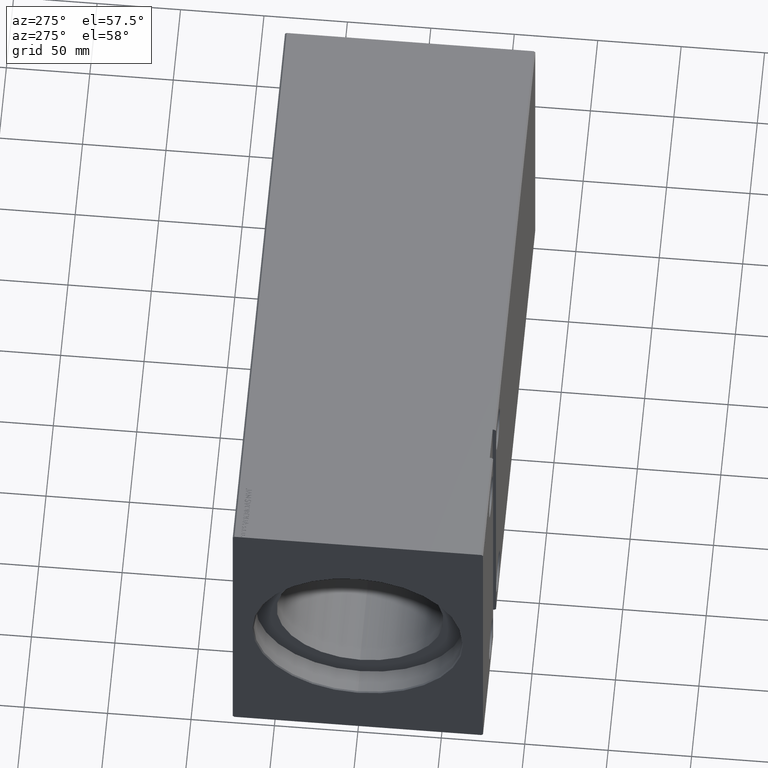
[diagram: clean part render]
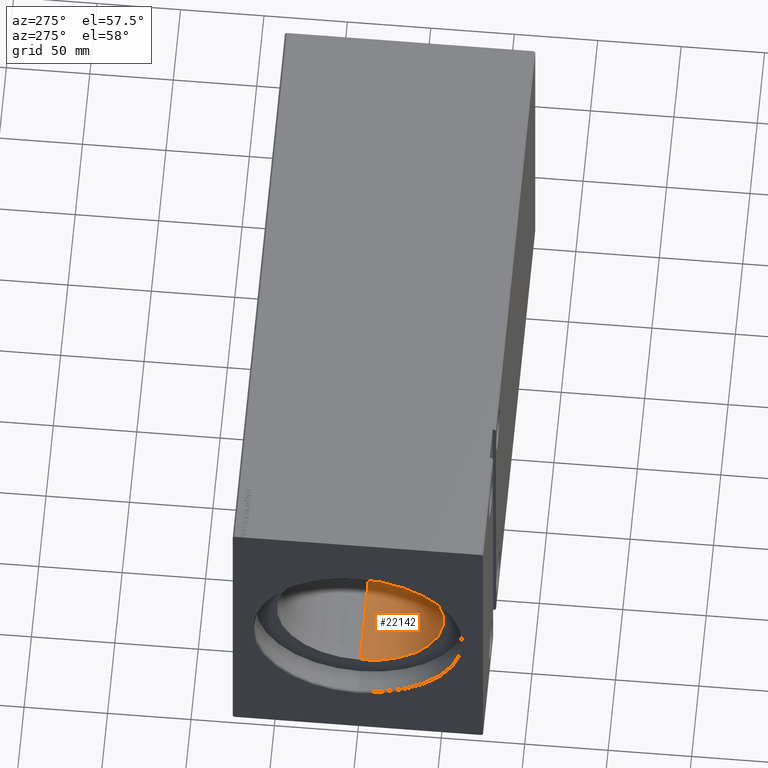
[diagram: same view with one face highlighted and labeled with its STEP entity id]
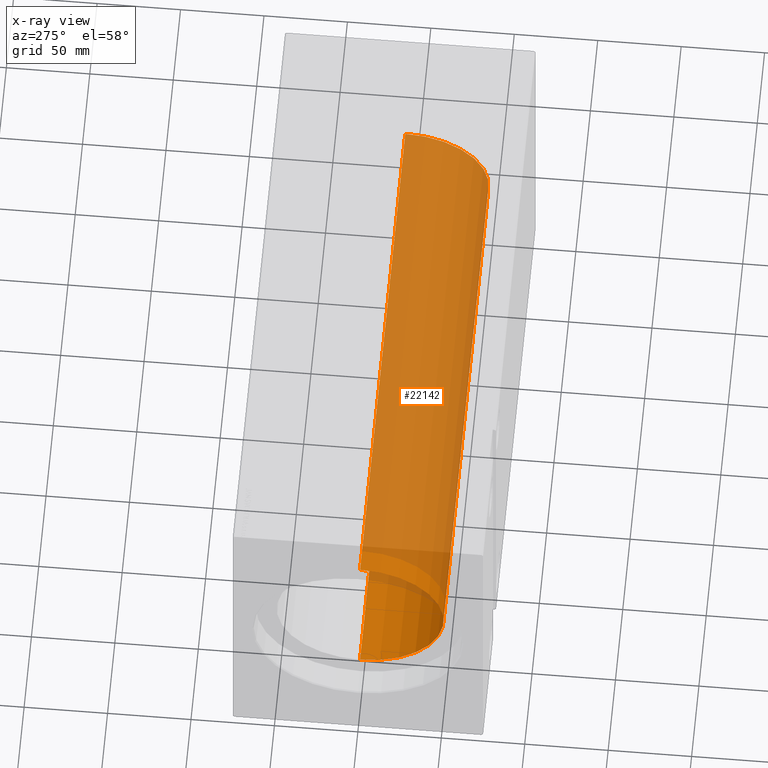
[diagram: x-ray of the same camera — body ghosted, the highlighted face saturated]
A machine part, auxiliary view. The second image highlights one B-rep face of the part: STEP entity #22142.
The next image is the same camera in x-ray: the body ghosted, the highlighted face saturated — about 85% of this face is hidden behind the body in this view.
In plain terms, the highlighted cylindrical surface (partial cylindrical patch) has radius 50 mm, axis along (-1, -0, -0).
Its self-contained STEP definition (entity closure, byte-faithful):
#1093 = VERTEX_POINT ( 'NONE', #39108 ) ;
#1119 = EDGE_CURVE ( 'NONE', #8791, #5972, #33241, .T. ) ;
#1245 = AXIS2_PLACEMENT_3D ( 'NONE', #35501, #32096, #22917 ) ;
#1903 = EDGE_LOOP ( 'NONE', ( #11768, #41971, #16762, #42154 ) ) ;
#4777 = VECTOR ( 'NONE', #40462, 1000.000000000000000 ) ;
#5972 = VERTEX_POINT ( 'NONE', #34301 ) ;
#6473 = CARTESIAN_POINT ( 'NONE',  ( 15.00000000000001421, 6.123233995736766085E-15, -50.00000000000000000 ) ) ;
#6768 = CARTESIAN_POINT ( 'NONE',  ( 324.6999999999999886, 0.000000000000000000, 0.000000000000000000 ) ) ;
#8696 = LINE ( 'NONE', #31501, #4777 ) ;
#8791 = VERTEX_POINT ( 'NONE', #6473 ) ;
#10393 = DIRECTION ( 'NONE',  ( 0.000000000000000000, 0.000000000000000000, 1.000000000000000000 ) ) ;
#11606 = CARTESIAN_POINT ( 'NONE',  ( 324.6999999999999886, 0.000000000000000000, 0.000000000000000000 ) ) ;
#11768 = ORIENTED_EDGE ( 'NONE', *, *, #14122, .F. ) ;
#13845 = CARTESIAN_POINT ( 'NONE',  ( 324.6999999999999886, 0.000000000000000000, 50.00000000000000000 ) ) ;
#14122 = EDGE_CURVE ( 'NONE', #1093, #20849, #36543, .T. ) ;
#16762 = ORIENTED_EDGE ( 'NONE', *, *, #1119, .T. ) ;
#16900 = VECTOR ( 'NONE', #30365, 1000.000000000000000 ) ;
#20180 = DIRECTION ( 'NONE',  ( -1.000000000000000000, -0.000000000000000000, -0.000000000000000000 ) ) ;
#20849 = VERTEX_POINT ( 'NONE', #13845 ) ;
#22142 = ADVANCED_FACE ( 'NONE', ( #32969 ), #39570, .F. ) ;
#22412 = EDGE_CURVE ( 'NONE', #20849, #5972, #33759, .T. ) ;
#22917 = DIRECTION ( 'NONE',  ( 0.000000000000000000, 0.000000000000000000, 1.000000000000000000 ) ) ;
#28422 = DIRECTION ( 'NONE',  ( 0.000000000000000000, 0.000000000000000000, 1.000000000000000000 ) ) ;
#29125 = AXIS2_PLACEMENT_3D ( 'NONE', #6768, #20180, #10393 ) ;
#29206 = EDGE_CURVE ( 'NONE', #1093, #8791, #8696, .T. ) ;
#30365 = DIRECTION ( 'NONE',  ( -1.000000000000000000, -0.000000000000000000, -0.000000000000000000 ) ) ;
#31501 = CARTESIAN_POINT ( 'NONE',  ( 324.6999999999999886, 6.123233995736766085E-15, -50.00000000000000000 ) ) ;
#32096 = DIRECTION ( 'NONE',  ( -1.000000000000000000, 0.000000000000000000, 0.000000000000000000 ) ) ;
#32969 = FACE_OUTER_BOUND ( 'NONE', #1903, .T. ) ;
#33241 = CIRCLE ( 'NONE', #1245, 50.00000000000000000 ) ;
#33759 = LINE ( 'NONE', #37157, #16900 ) ;
#33813 = AXIS2_PLACEMENT_3D ( 'NONE', #11606, #41404, #28422 ) ;
#34301 = CARTESIAN_POINT ( 'NONE',  ( 15.00000000000001421, 0.000000000000000000, 50.00000000000000000 ) ) ;
#35501 = CARTESIAN_POINT ( 'NONE',  ( 15.00000000000001421, 0.000000000000000000, 0.000000000000000000 ) ) ;
#36543 = CIRCLE ( 'NONE', #33813, 50.00000000000000000 ) ;
#37157 = CARTESIAN_POINT ( 'NONE',  ( 324.6999999999999886, 0.000000000000000000, 50.00000000000000000 ) ) ;
#39108 = CARTESIAN_POINT ( 'NONE',  ( 324.6999999999999886, 6.123233995736766085E-15, -50.00000000000000000 ) ) ;
#39570 = CYLINDRICAL_SURFACE ( 'NONE', #29125, 50.00000000000000000 ) ;
#40462 = DIRECTION ( 'NONE',  ( -1.000000000000000000, -0.000000000000000000, -0.000000000000000000 ) ) ;
#41404 = DIRECTION ( 'NONE',  ( -1.000000000000000000, 0.000000000000000000, 0.000000000000000000 ) ) ;
#41971 = ORIENTED_EDGE ( 'NONE', *, *, #29206, .T. ) ;
#42154 = ORIENTED_EDGE ( 'NONE', *, *, #22412, .F. ) ;